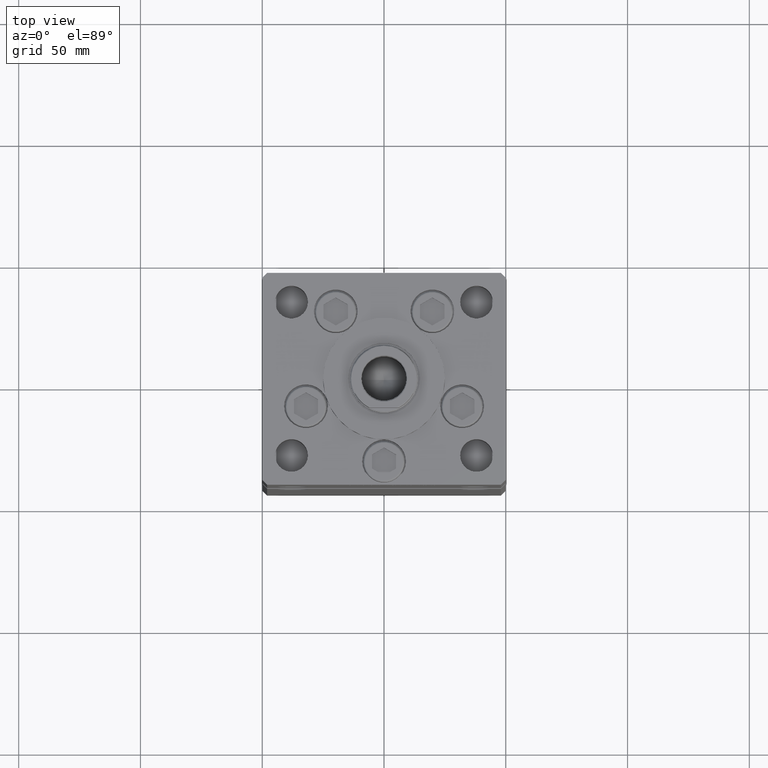
[diagram: clean part render]
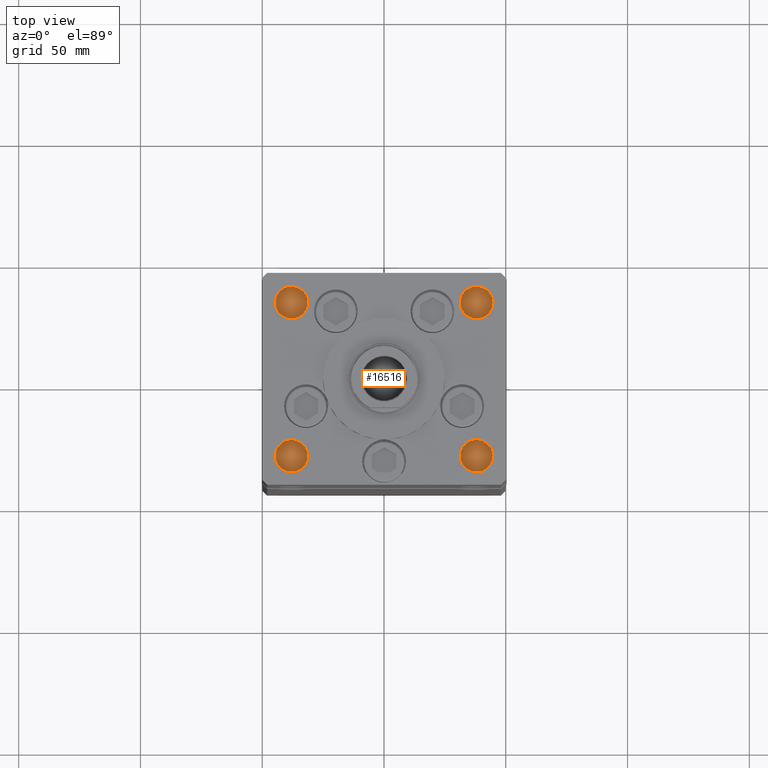
[diagram: same view with one face highlighted and labeled with its STEP entity id]
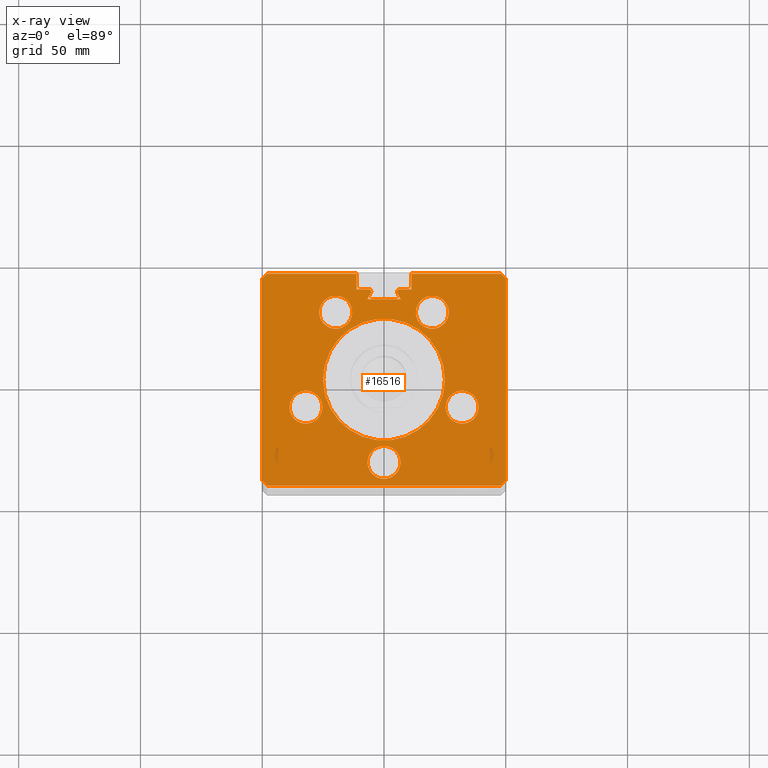
[diagram: x-ray of the same camera — body ghosted, the highlighted face saturated]
A machine part, top view. The second image highlights one B-rep face of the part: STEP entity #16516.
The next image is the same camera in x-ray: the body ghosted, the highlighted face saturated — about 0% of this face is hidden behind the body in this view.
In plain terms, the highlighted planar face has unit normal (0, 0, -1).
Its self-contained STEP definition (entity closure, byte-faithful):
#24 = LINE ( 'NONE', #7303, #5033 ) ;
#130 = AXIS2_PLACEMENT_3D ( 'NONE', #28015, #24785, #16163 ) ;
#224 = ORIENTED_EDGE ( 'NONE', *, *, #27533, .T. ) ;
#892 = EDGE_CURVE ( 'NONE', #34523, #48276, #22773, .T. ) ;
#991 = DIRECTION ( 'NONE',  ( -0.7071067811865487940, -0.7071067811865463515, 0.000000000000000000 ) ) ;
#1094 = VERTEX_POINT ( 'NONE', #40457 ) ;
#1433 = EDGE_CURVE ( 'NONE', #3736, #13519, #10779, .T. ) ;
#1440 = CIRCLE ( 'NONE', #47888, 25.00000000000000000 ) ;
#1761 = DIRECTION ( 'NONE',  ( 1.000000000000000000, 0.000000000000000000, 0.000000000000000000 ) ) ;
#2347 = CARTESIAN_POINT ( 'NONE',  ( -32.05550741379015278, -11.33333333333334458, 218.5000000000000000 ) ) ;
#2657 = AXIS2_PLACEMENT_3D ( 'NONE', #39534, #48422, #27936 ) ;
#2670 = EDGE_CURVE ( 'NONE', #48276, #50287, #33044, .T. ) ;
#2735 = CIRCLE ( 'NONE', #18225, 6.749999999999999112 ) ;
#2767 = AXIS2_PLACEMENT_3D ( 'NONE', #10410, #26573, #51080 ) ;
#2903 = DIRECTION ( 'NONE',  ( 0.000000000000000000, 0.000000000000000000, 1.000000000000000000 ) ) ;
#3217 = DIRECTION ( 'NONE',  ( -1.000000000000000000, 0.000000000000000000, -0.000000000000000000 ) ) ;
#3232 = CARTESIAN_POINT ( 'NONE',  ( -11.24999999999999645, 43.50000000000000000, 218.5000000000000000 ) ) ;
#3542 = AXIS2_PLACEMENT_3D ( 'NONE', #35037, #39063, #50661 ) ;
#3560 = CARTESIAN_POINT ( 'NONE',  ( -47.99999999999998579, -43.50000000000000000, 218.5000000000000000 ) ) ;
#3736 = VERTEX_POINT ( 'NONE', #16930 ) ;
#3777 = VERTEX_POINT ( 'NONE', #16403 ) ;
#3783 = CARTESIAN_POINT ( 'NONE',  ( 48.00000000000000711, 43.50000000000000000, 218.5000000000000000 ) ) ;
#3887 = VERTEX_POINT ( 'NONE', #35757 ) ;
#3931 = CARTESIAN_POINT ( 'NONE',  ( -25.30550741379015278, -11.33333333333334458, 218.5000000000000000 ) ) ;
#4034 = VERTEX_POINT ( 'NONE', #8785 ) ;
#4071 = DIRECTION ( 'NONE',  ( -1.000000000000000000, 0.000000000000000000, 0.000000000000000000 ) ) ;
#4451 = CARTESIAN_POINT ( 'NONE',  ( 6.183333333333996151, 36.06666666666599497, 218.5000000000000000 ) ) ;
#4715 = DIRECTION ( 'NONE',  ( 1.000000000000000000, 0.000000000000000000, 0.000000000000000000 ) ) ;
#5033 = VECTOR ( 'NONE', #44731, 1000.000000000000114 ) ;
#5331 = CARTESIAN_POINT ( 'NONE',  ( 0.000000000000000000, 0.000000000000000000, 218.5000000000000000 ) ) ;
#5808 = AXIS2_PLACEMENT_3D ( 'NONE', #43767, #18729, #1761 ) ;
#5852 = VECTOR ( 'NONE', #28893, 1000.000000000000000 ) ;
#6116 = DIRECTION ( 'NONE',  ( 0.000000000000000000, 0.000000000000000000, -1.000000000000000000 ) ) ;
#6306 = VECTOR ( 'NONE', #4071, 1000.000000000000000 ) ;
#6566 = CARTESIAN_POINT ( 'NONE',  ( -19.44653440471351757, 11.22746187336663404, 218.5000000000000000 ) ) ;
#6764 = VERTEX_POINT ( 'NONE', #52299 ) ;
#6909 = EDGE_CURVE ( 'NONE', #53195, #27664, #38097, .T. ) ;
#6983 = CARTESIAN_POINT ( 'NONE',  ( 50.00000000000001421, 41.49999999999999289, 218.5000000000000000 ) ) ;
#7033 = DIRECTION ( 'NONE',  ( 0.7071067811865487940, -0.7071067811865463515, 0.000000000000000000 ) ) ;
#7091 = EDGE_CURVE ( 'NONE', #21344, #34523, #16858, .T. ) ;
#7303 = CARTESIAN_POINT ( 'NONE',  ( 19.44653440471351757, 11.22746187336663404, 218.5000000000000000 ) ) ;
#7693 = EDGE_CURVE ( 'NONE', #18339, #20068, #28849, .T. ) ;
#7996 = AXIS2_PLACEMENT_3D ( 'NONE', #2347, #27382, #37968 ) ;
#8000 = VECTOR ( 'NONE', #12311, 1000.000000000000000 ) ;
#8785 = CARTESIAN_POINT ( 'NONE',  ( -6.876153656360465050, 32.99999999999986500, 218.5000000000000000 ) ) ;
#9427 = ORIENTED_EDGE ( 'NONE', *, *, #7091, .T. ) ;
#10091 = AXIS2_PLACEMENT_3D ( 'NONE', #43311, #2903, #22852 ) ;
#10108 = VERTEX_POINT ( 'NONE', #12467 ) ;
#10410 = CARTESIAN_POINT ( 'NONE',  ( 32.05550741379015278, -11.33333333333334103, 218.5000000000000000 ) ) ;
#10645 = DIRECTION ( 'NONE',  ( 0.7071067811865474617, -0.7071067811865474617, 0.000000000000000000 ) ) ;
#10779 = LINE ( 'NONE', #3232, #51840 ) ;
#10880 = DIRECTION ( 'NONE',  ( 0.4999999999999987788, 0.8660254037844392627, 0.000000000000000000 ) ) ;
#10995 = CARTESIAN_POINT ( 'NONE',  ( -48.00000000000000711, 43.50000000000000000, 218.5000000000000000 ) ) ;
#11000 = DIRECTION ( 'NONE',  ( 1.000000000000000000, 0.000000000000000000, 0.000000000000000000 ) ) ;
#11030 = PLANE ( 'NONE',  #44392 ) ;
#11032 = ORIENTED_EDGE ( 'NONE', *, *, #42545, .F. ) ;
#11074 = ORIENTED_EDGE ( 'NONE', *, *, #48885, .F. ) ;
#11410 = CARTESIAN_POINT ( 'NONE',  ( -6.183333333333996151, 37.00000000000000000, 218.5000000000000000 ) ) ;
#11592 = AXIS2_PLACEMENT_3D ( 'NONE', #5331, #21770, #17732 ) ;
#11671 = EDGE_LOOP ( 'NONE', ( #47406, #12053, #27453, #20548, #9427, #48428, #20260, #12110, #50152, #11032, #51209, #34714, #35294, #51405, #224, #24521, #45826, #36440, #31510 ) ) ;
#11700 = CIRCLE ( 'NONE', #32360, 0.9333333333339999260 ) ;
#11768 = EDGE_CURVE ( 'NONE', #6764, #37636, #47695, .T. ) ;
#11824 = DIRECTION ( 'NONE',  ( -3.344045254895050973E-16, -1.000000000000000000, 0.000000000000000000 ) ) ;
#11924 = ORIENTED_EDGE ( 'NONE', *, *, #11768, .F. ) ;
#12053 = ORIENTED_EDGE ( 'NONE', *, *, #25688, .T. ) ;
#12110 = ORIENTED_EDGE ( 'NONE', *, *, #42483, .F. ) ;
#12311 = DIRECTION ( 'NONE',  ( 1.000000000000000000, 0.000000000000000000, 0.000000000000000000 ) ) ;
#12344 = CARTESIAN_POINT ( 'NONE',  ( -11.24999999999999645, 43.50000000000000000, 218.5000000000000000 ) ) ;
#12467 = CARTESIAN_POINT ( 'NONE',  ( 50.00000000000001421, 41.49999999999999289, 218.5000000000000000 ) ) ;
#12561 = CARTESIAN_POINT ( 'NONE',  ( 49.99999999999998579, -41.49999999999999289, 218.5000000000000000 ) ) ;
#13323 = CARTESIAN_POINT ( 'NONE',  ( 2.081899558550500280E-15, -34.00000000000000000, 218.5000000000000000 ) ) ;
#13519 = VERTEX_POINT ( 'NONE', #20642 ) ;
#14192 = CARTESIAN_POINT ( 'NONE',  ( 0.000000000000000000, 37.00000000000000000, 218.5000000000000000 ) ) ;
#14588 = LINE ( 'NONE', #47176, #19116 ) ;
#14985 = LINE ( 'NONE', #14192, #26200 ) ;
#15095 = VERTEX_POINT ( 'NONE', #25387 ) ;
#15243 = VERTEX_POINT ( 'NONE', #32080 ) ;
#15333 = FACE_OUTER_BOUND ( 'NONE', #11671, .T. ) ;
#15589 = CARTESIAN_POINT ( 'NONE',  ( 0.000000000000000000, 0.000000000000000000, 218.5000000000000000 ) ) ;
#15720 = EDGE_CURVE ( 'NONE', #39001, #52782, #11700, .T. ) ;
#15988 = CARTESIAN_POINT ( 'NONE',  ( 5.375042956467946276, 35.59999999999899245, 218.5000000000000000 ) ) ;
#16063 = CARTESIAN_POINT ( 'NONE',  ( 6.876153656360465050, 32.99999999999986500, 218.5000000000000000 ) ) ;
#16163 = DIRECTION ( 'NONE',  ( 1.000000000000000000, 0.000000000000000000, 0.000000000000000000 ) ) ;
#16358 = EDGE_LOOP ( 'NONE', ( #19948, #11074 ) ) ;
#16403 = CARTESIAN_POINT ( 'NONE',  ( -6.749999999999997335, -34.00000000000000000, 218.5000000000000000 ) ) ;
#16473 = EDGE_CURVE ( 'NONE', #10108, #32921, #36876, .T. ) ;
#16516 = ADVANCED_FACE ( 'NONE', ( #52236, #23968, #44683, #19656, #32028, #15333, #31760 ), #11030, .F. ) ;
#16646 = DIRECTION ( 'NONE',  ( 1.000000000000000000, 0.000000000000000000, 0.000000000000000000 ) ) ;
#16858 = LINE ( 'NONE', #50240, #43252 ) ;
#16930 = CARTESIAN_POINT ( 'NONE',  ( 11.24999999999998934, 43.50000000000000000, 218.5000000000000000 ) ) ;
#17269 = CARTESIAN_POINT ( 'NONE',  ( -5.249999999999995559, 36.06666666666599497, 218.5000000000000000 ) ) ;
#17732 = DIRECTION ( 'NONE',  ( 1.000000000000000000, 0.000000000000000000, 0.000000000000000000 ) ) ;
#18225 = AXIS2_PLACEMENT_3D ( 'NONE', #43594, #47905, #11000 ) ;
#18257 = AXIS2_PLACEMENT_3D ( 'NONE', #13323, #20888, #4715 ) ;
#18339 = VERTEX_POINT ( 'NONE', #11410 ) ;
#18431 = CARTESIAN_POINT ( 'NONE',  ( -25.00000000000000000, 0.000000000000000000, 218.5000000000000000 ) ) ;
#18729 = DIRECTION ( 'NONE',  ( 0.000000000000000000, 0.000000000000000000, 1.000000000000000000 ) ) ;
#18784 = EDGE_CURVE ( 'NONE', #46988, #20863, #1440, .T. ) ;
#19102 = DIRECTION ( 'NONE',  ( 0.000000000000000000, 0.000000000000000000, -1.000000000000000000 ) ) ;
#19116 = VECTOR ( 'NONE', #38290, 1000.000000000000114 ) ;
#19269 = EDGE_LOOP ( 'NONE', ( #36494, #52315 ) ) ;
#19273 = ORIENTED_EDGE ( 'NONE', *, *, #18784, .F. ) ;
#19527 = CARTESIAN_POINT ( 'NONE',  ( 2.081899558550500280E-15, -34.00000000000000000, 218.5000000000000000 ) ) ;
#19656 = FACE_BOUND ( 'NONE', #23649, .T. ) ;
#19830 = DIRECTION ( 'NONE',  ( 1.000000000000000000, 0.000000000000000000, 0.000000000000000000 ) ) ;
#19948 = ORIENTED_EDGE ( 'NONE', *, *, #37915, .F. ) ;
#20068 = VERTEX_POINT ( 'NONE', #44534 ) ;
#20260 = ORIENTED_EDGE ( 'NONE', *, *, #2670, .T. ) ;
#20548 = ORIENTED_EDGE ( 'NONE', *, *, #32345, .T. ) ;
#20642 = CARTESIAN_POINT ( 'NONE',  ( 48.00000000000000711, 43.50000000000000000, 218.5000000000000000 ) ) ;
#20850 = CIRCLE ( 'NONE', #18257, 6.749999999999999112 ) ;
#20863 = VERTEX_POINT ( 'NONE', #18431 ) ;
#20888 = DIRECTION ( 'NONE',  ( 0.000000000000000000, 0.000000000000000000, 1.000000000000000000 ) ) ;
#21344 = VERTEX_POINT ( 'NONE', #22341 ) ;
#21565 = CIRCLE ( 'NONE', #2657, 6.749999999999999112 ) ;
#21605 = CIRCLE ( 'NONE', #3542, 6.749999999999999112 ) ;
#21770 = DIRECTION ( 'NONE',  ( -0.000000000000000000, 0.000000000000000000, 1.000000000000000000 ) ) ;
#22077 = DIRECTION ( 'NONE',  ( 1.000000000000000000, 0.000000000000000000, 0.000000000000000000 ) ) ;
#22341 = CARTESIAN_POINT ( 'NONE',  ( -50.00000000000001421, 41.49999999999999289, 218.5000000000000000 ) ) ;
#22725 = EDGE_LOOP ( 'NONE', ( #43520, #19273 ) ) ;
#22773 = LINE ( 'NONE', #47815, #36354 ) ;
#22852 = DIRECTION ( 'NONE',  ( 1.000000000000000000, 0.000000000000000000, 0.000000000000000000 ) ) ;
#23198 = CARTESIAN_POINT ( 'NONE',  ( 25.30550741379015278, -11.33333333333334103, 218.5000000000000000 ) ) ;
#23392 = EDGE_CURVE ( 'NONE', #4034, #1094, #43996, .T. ) ;
#23478 = EDGE_CURVE ( 'NONE', #3736, #46274, #28620, .T. ) ;
#23649 = EDGE_LOOP ( 'NONE', ( #24296, #43861 ) ) ;
#23968 = FACE_BOUND ( 'NONE', #16358, .T. ) ;
#24296 = ORIENTED_EDGE ( 'NONE', *, *, #34830, .F. ) ;
#24482 = CARTESIAN_POINT ( 'NONE',  ( 6.183333333333996151, 37.00000000000000000, 218.5000000000000000 ) ) ;
#24521 = ORIENTED_EDGE ( 'NONE', *, *, #35562, .T. ) ;
#24691 = EDGE_CURVE ( 'NONE', #27664, #53195, #37722, .T. ) ;
#24785 = DIRECTION ( 'NONE',  ( 0.000000000000000000, 0.000000000000000000, -1.000000000000000000 ) ) ;
#24974 = CARTESIAN_POINT ( 'NONE',  ( -47.99999999999998579, -43.50000000000000000, 218.5000000000000000 ) ) ;
#25387 = CARTESIAN_POINT ( 'NONE',  ( 38.80550741379015278, -11.33333333333334103, 218.5000000000000000 ) ) ;
#25593 = CARTESIAN_POINT ( 'NONE',  ( 0.000000000000000000, 0.000000000000000000, 218.5000000000000000 ) ) ;
#25688 = EDGE_CURVE ( 'NONE', #20068, #3887, #48669, .T. ) ;
#25697 = CARTESIAN_POINT ( 'NONE',  ( 11.24999999999999645, 37.00000000000000000, 218.5000000000000000 ) ) ;
#25864 = EDGE_CURVE ( 'NONE', #15095, #31804, #47105, .T. ) ;
#26200 = VECTOR ( 'NONE', #38967, 1000.000000000000000 ) ;
#26344 = DIRECTION ( 'NONE',  ( -1.000000000000000000, 0.000000000000000000, 0.000000000000000000 ) ) ;
#26573 = DIRECTION ( 'NONE',  ( 0.000000000000000000, 0.000000000000000000, 1.000000000000000000 ) ) ;
#27174 = CARTESIAN_POINT ( 'NONE',  ( -38.80550741379015278, -11.33333333333334458, 218.5000000000000000 ) ) ;
#27382 = DIRECTION ( 'NONE',  ( 0.000000000000000000, 0.000000000000000000, 1.000000000000000000 ) ) ;
#27453 = ORIENTED_EDGE ( 'NONE', *, *, #43033, .F. ) ;
#27529 = VECTOR ( 'NONE', #991, 1000.000000000000000 ) ;
#27533 = EDGE_CURVE ( 'NONE', #39001, #53246, #24, .T. ) ;
#27664 = VERTEX_POINT ( 'NONE', #27174 ) ;
#27936 = DIRECTION ( 'NONE',  ( 1.000000000000000000, 0.000000000000000000, 0.000000000000000000 ) ) ;
#28015 = CARTESIAN_POINT ( 'NONE',  ( -6.183333333333996151, 36.06666666666599497, 218.5000000000000000 ) ) ;
#28097 = DIRECTION ( 'NONE',  ( 1.000000000000000000, 0.000000000000000000, 0.000000000000000000 ) ) ;
#28620 = LINE ( 'NONE', #36982, #5852 ) ;
#28849 = LINE ( 'NONE', #29119, #6306 ) ;
#28893 = DIRECTION ( 'NONE',  ( -0.000000000000000000, -1.000000000000000000, 0.000000000000000000 ) ) ;
#29080 = VECTOR ( 'NONE', #10880, 1000.000000000000114 ) ;
#29119 = CARTESIAN_POINT ( 'NONE',  ( 0.000000000000000000, 37.00000000000000000, 218.5000000000000000 ) ) ;
#29326 = VECTOR ( 'NONE', #26344, 1000.000000000000000 ) ;
#29388 = ORIENTED_EDGE ( 'NONE', *, *, #37795, .F. ) ;
#30353 = CARTESIAN_POINT ( 'NONE',  ( -6.183333333333996151, 36.06666666666599497, 218.5000000000000000 ) ) ;
#30921 = CARTESIAN_POINT ( 'NONE',  ( 0.000000000000000000, 32.99999999999986500, 218.5000000000000000 ) ) ;
#30964 = VERTEX_POINT ( 'NONE', #51993 ) ;
#31128 = VERTEX_POINT ( 'NONE', #10995 ) ;
#31510 = ORIENTED_EDGE ( 'NONE', *, *, #36352, .F. ) ;
#31760 = FACE_BOUND ( 'NONE', #22725, .T. ) ;
#31804 = VERTEX_POINT ( 'NONE', #23198 ) ;
#32028 = FACE_BOUND ( 'NONE', #41443, .T. ) ;
#32080 = CARTESIAN_POINT ( 'NONE',  ( 26.57068048781373903, 27.62500000000000000, 218.5000000000000000 ) ) ;
#32079 = LINE ( 'NONE', #3783, #36302 ) ;
#32233 = CARTESIAN_POINT ( 'NONE',  ( -11.24999999999999645, 0.000000000000000000, 218.5000000000000000 ) ) ;
#32345 = EDGE_CURVE ( 'NONE', #31128, #21344, #45707, .T. ) ;
#32360 = AXIS2_PLACEMENT_3D ( 'NONE', #4451, #19102, #36074 ) ;
#32921 = VERTEX_POINT ( 'NONE', #12561 ) ;
#33044 = LINE ( 'NONE', #24974, #8000 ) ;
#33352 = VECTOR ( 'NONE', #40319, 1000.000000000000000 ) ;
#33766 = ORIENTED_EDGE ( 'NONE', *, *, #36583, .F. ) ;
#34523 = VERTEX_POINT ( 'NONE', #46012 ) ;
#34714 = ORIENTED_EDGE ( 'NONE', *, *, #23478, .T. ) ;
#34830 = EDGE_CURVE ( 'NONE', #15243, #30964, #21565, .T. ) ;
#34875 = EDGE_LOOP ( 'NONE', ( #39611, #29388 ) ) ;
#35037 = CARTESIAN_POINT ( 'NONE',  ( 19.82068048781374259, 27.62500000000000000, 218.5000000000000000 ) ) ;
#35294 = ORIENTED_EDGE ( 'NONE', *, *, #49670, .T. ) ;
#35352 = VERTEX_POINT ( 'NONE', #17269 ) ;
#35361 = EDGE_CURVE ( 'NONE', #30964, #15243, #21605, .T. ) ;
#35562 = EDGE_CURVE ( 'NONE', #53246, #4034, #51659, .T. ) ;
#35757 = CARTESIAN_POINT ( 'NONE',  ( -11.24999999999999645, 43.50000000000000000, 218.5000000000000000 ) ) ;
#36074 = DIRECTION ( 'NONE',  ( 1.000000000000000000, 0.000000000000000000, 0.000000000000000000 ) ) ;
#36302 = VECTOR ( 'NONE', #7033, 1000.000000000000000 ) ;
#36352 = EDGE_CURVE ( 'NONE', #18339, #35352, #39680, .T. ) ;
#36354 = VECTOR ( 'NONE', #10645, 1000.000000000000114 ) ;
#36440 = ORIENTED_EDGE ( 'NONE', *, *, #50771, .F. ) ;
#36494 = ORIENTED_EDGE ( 'NONE', *, *, #6909, .F. ) ;
#36583 = EDGE_CURVE ( 'NONE', #37636, #6764, #2735, .T. ) ;
#36609 = DIRECTION ( 'NONE',  ( 0.000000000000000000, 0.000000000000000000, -1.000000000000000000 ) ) ;
#36876 = LINE ( 'NONE', #6983, #49540 ) ;
#36982 = CARTESIAN_POINT ( 'NONE',  ( 11.24999999999999645, 0.000000000000000000, 218.5000000000000000 ) ) ;
#37395 = AXIS2_PLACEMENT_3D ( 'NONE', #19527, #52375, #19830 ) ;
#37636 = VERTEX_POINT ( 'NONE', #50283 ) ;
#37722 = CIRCLE ( 'NONE', #10091, 6.749999999999999112 ) ;
#37795 = EDGE_CURVE ( 'NONE', #31804, #15095, #44913, .T. ) ;
#37885 = CARTESIAN_POINT ( 'NONE',  ( -48.00000000000000711, 43.50000000000000000, 218.5000000000000000 ) ) ;
#37915 = EDGE_CURVE ( 'NONE', #47429, #3777, #20850, .T. ) ;
#37968 = DIRECTION ( 'NONE',  ( 1.000000000000000000, 0.000000000000000000, 0.000000000000000000 ) ) ;
#37987 = CARTESIAN_POINT ( 'NONE',  ( 6.750000000000000888, -34.00000000000000000, 218.5000000000000000 ) ) ;
#38097 = CIRCLE ( 'NONE', #7996, 6.749999999999999112 ) ;
#38290 = DIRECTION ( 'NONE',  ( -0.7071067811865474617, -0.7071067811865474617, 0.000000000000000000 ) ) ;
#38309 = AXIS2_PLACEMENT_3D ( 'NONE', #30353, #6116, #46789 ) ;
#38967 = DIRECTION ( 'NONE',  ( -1.000000000000000000, 0.000000000000000000, 0.000000000000000000 ) ) ;
#39001 = VERTEX_POINT ( 'NONE', #15988 ) ;
#39063 = DIRECTION ( 'NONE',  ( 0.000000000000000000, 0.000000000000000000, 1.000000000000000000 ) ) ;
#39118 = CIRCLE ( 'NONE', #37395, 6.749999999999999112 ) ;
#39534 = CARTESIAN_POINT ( 'NONE',  ( 19.82068048781374259, 27.62500000000000000, 218.5000000000000000 ) ) ;
#39611 = ORIENTED_EDGE ( 'NONE', *, *, #25864, .F. ) ;
#39680 = CIRCLE ( 'NONE', #130, 0.9333333333339999260 ) ;
#40004 = CIRCLE ( 'NONE', #38309, 0.9333333333339999260 ) ;
#40319 = DIRECTION ( 'NONE',  ( 0.000000000000000000, 1.000000000000000000, 0.000000000000000000 ) ) ;
#40457 = CARTESIAN_POINT ( 'NONE',  ( -5.375042956467946276, 35.59999999999899245, 218.5000000000000000 ) ) ;
#41443 = EDGE_LOOP ( 'NONE', ( #11924, #33766 ) ) ;
#42020 = CARTESIAN_POINT ( 'NONE',  ( 47.99999999999998579, -43.50000000000000000, 218.5000000000000000 ) ) ;
#42434 = CARTESIAN_POINT ( 'NONE',  ( 25.00000000000000000, 3.061616997868383043E-15, 218.5000000000000000 ) ) ;
#42483 = EDGE_CURVE ( 'NONE', #32921, #50287, #14588, .T. ) ;
#42545 = EDGE_CURVE ( 'NONE', #13519, #10108, #32079, .T. ) ;
#43033 = EDGE_CURVE ( 'NONE', #31128, #3887, #49245, .T. ) ;
#43252 = VECTOR ( 'NONE', #46204, 1000.000000000000000 ) ;
#43311 = CARTESIAN_POINT ( 'NONE',  ( -32.05550741379015278, -11.33333333333334458, 218.5000000000000000 ) ) ;
#43520 = ORIENTED_EDGE ( 'NONE', *, *, #48573, .F. ) ;
#43594 = CARTESIAN_POINT ( 'NONE',  ( -19.82068048781374259, 27.62499999999999645, 218.5000000000000000 ) ) ;
#43767 = CARTESIAN_POINT ( 'NONE',  ( 32.05550741379015278, -11.33333333333334103, 218.5000000000000000 ) ) ;
#43861 = ORIENTED_EDGE ( 'NONE', *, *, #35361, .F. ) ;
#43996 = LINE ( 'NONE', #6566, #29080 ) ;
#44392 = AXIS2_PLACEMENT_3D ( 'NONE', #15589, #36609, #3217 ) ;
#44534 = CARTESIAN_POINT ( 'NONE',  ( -11.24999999999999645, 37.00000000000000000, 218.5000000000000000 ) ) ;
#44683 = FACE_BOUND ( 'NONE', #34875, .T. ) ;
#44731 = DIRECTION ( 'NONE',  ( 0.4999999999999987788, -0.8660254037844392627, 0.000000000000000000 ) ) ;
#44913 = CIRCLE ( 'NONE', #2767, 6.749999999999999112 ) ;
#45061 = DIRECTION ( 'NONE',  ( 0.000000000000000000, 0.000000000000000000, 1.000000000000000000 ) ) ;
#45707 = LINE ( 'NONE', #37885, #27529 ) ;
#45826 = ORIENTED_EDGE ( 'NONE', *, *, #23392, .T. ) ;
#46012 = CARTESIAN_POINT ( 'NONE',  ( -49.99999999999998579, -41.49999999999999289, 218.5000000000000000 ) ) ;
#46204 = DIRECTION ( 'NONE',  ( 3.344045254895050973E-16, -1.000000000000000000, 0.000000000000000000 ) ) ;
#46274 = VERTEX_POINT ( 'NONE', #25697 ) ;
#46789 = DIRECTION ( 'NONE',  ( 1.000000000000000000, 0.000000000000000000, 0.000000000000000000 ) ) ;
#46844 = DIRECTION ( 'NONE',  ( -0.000000000000000000, 0.000000000000000000, 1.000000000000000000 ) ) ;
#46988 = VERTEX_POINT ( 'NONE', #42434 ) ;
#47105 = CIRCLE ( 'NONE', #5808, 6.749999999999999112 ) ;
#47176 = CARTESIAN_POINT ( 'NONE',  ( 49.99999999999998579, -41.49999999999999289, 218.5000000000000000 ) ) ;
#47406 = ORIENTED_EDGE ( 'NONE', *, *, #7693, .T. ) ;
#47429 = VERTEX_POINT ( 'NONE', #37987 ) ;
#47695 = CIRCLE ( 'NONE', #52900, 6.749999999999999112 ) ;
#47745 = CIRCLE ( 'NONE', #11592, 25.00000000000000000 ) ;
#47815 = CARTESIAN_POINT ( 'NONE',  ( -49.99999999999998579, -41.49999999999999289, 218.5000000000000000 ) ) ;
#47888 = AXIS2_PLACEMENT_3D ( 'NONE', #25593, #46844, #22077 ) ;
#47905 = DIRECTION ( 'NONE',  ( 0.000000000000000000, 0.000000000000000000, 1.000000000000000000 ) ) ;
#48276 = VERTEX_POINT ( 'NONE', #3560 ) ;
#48422 = DIRECTION ( 'NONE',  ( 0.000000000000000000, 0.000000000000000000, 1.000000000000000000 ) ) ;
#48428 = ORIENTED_EDGE ( 'NONE', *, *, #892, .T. ) ;
#48573 = EDGE_CURVE ( 'NONE', #20863, #46988, #47745, .T. ) ;
#48669 = LINE ( 'NONE', #32233, #33352 ) ;
#48844 = CARTESIAN_POINT ( 'NONE',  ( -19.82068048781374259, 27.62499999999999645, 218.5000000000000000 ) ) ;
#48885 = EDGE_CURVE ( 'NONE', #3777, #47429, #39118, .T. ) ;
#49245 = LINE ( 'NONE', #12344, #50933 ) ;
#49540 = VECTOR ( 'NONE', #11824, 1000.000000000000000 ) ;
#49670 = EDGE_CURVE ( 'NONE', #46274, #52782, #14985, .T. ) ;
#50152 = ORIENTED_EDGE ( 'NONE', *, *, #16473, .F. ) ;
#50240 = CARTESIAN_POINT ( 'NONE',  ( -50.00000000000001421, 41.49999999999999289, 218.5000000000000000 ) ) ;
#50283 = CARTESIAN_POINT ( 'NONE',  ( -26.57068048781373903, 27.62499999999999645, 218.5000000000000000 ) ) ;
#50287 = VERTEX_POINT ( 'NONE', #42020 ) ;
#50661 = DIRECTION ( 'NONE',  ( 1.000000000000000000, 0.000000000000000000, 0.000000000000000000 ) ) ;
#50771 = EDGE_CURVE ( 'NONE', #35352, #1094, #40004, .T. ) ;
#50933 = VECTOR ( 'NONE', #16646, 1000.000000000000000 ) ;
#51080 = DIRECTION ( 'NONE',  ( 1.000000000000000000, 0.000000000000000000, 0.000000000000000000 ) ) ;
#51209 = ORIENTED_EDGE ( 'NONE', *, *, #1433, .F. ) ;
#51405 = ORIENTED_EDGE ( 'NONE', *, *, #15720, .F. ) ;
#51659 = LINE ( 'NONE', #30921, #29326 ) ;
#51840 = VECTOR ( 'NONE', #52251, 1000.000000000000000 ) ;
#51993 = CARTESIAN_POINT ( 'NONE',  ( 13.07068048781374081, 27.62500000000000000, 218.5000000000000000 ) ) ;
#52236 = FACE_BOUND ( 'NONE', #19269, .T. ) ;
#52251 = DIRECTION ( 'NONE',  ( 1.000000000000000000, 0.000000000000000000, 0.000000000000000000 ) ) ;
#52299 = CARTESIAN_POINT ( 'NONE',  ( -13.07068048781374259, 27.62499999999999645, 218.5000000000000000 ) ) ;
#52315 = ORIENTED_EDGE ( 'NONE', *, *, #24691, .F. ) ;
#52375 = DIRECTION ( 'NONE',  ( 0.000000000000000000, 0.000000000000000000, 1.000000000000000000 ) ) ;
#52782 = VERTEX_POINT ( 'NONE', #24482 ) ;
#52900 = AXIS2_PLACEMENT_3D ( 'NONE', #48844, #45061, #28097 ) ;
#53195 = VERTEX_POINT ( 'NONE', #3931 ) ;
#53246 = VERTEX_POINT ( 'NONE', #16063 ) ;